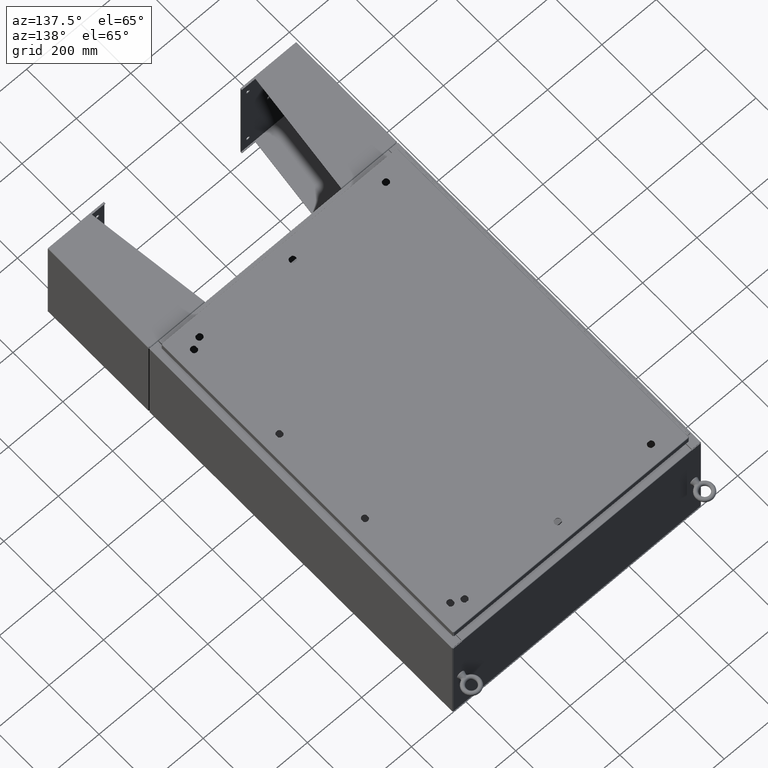
[diagram: clean part render]
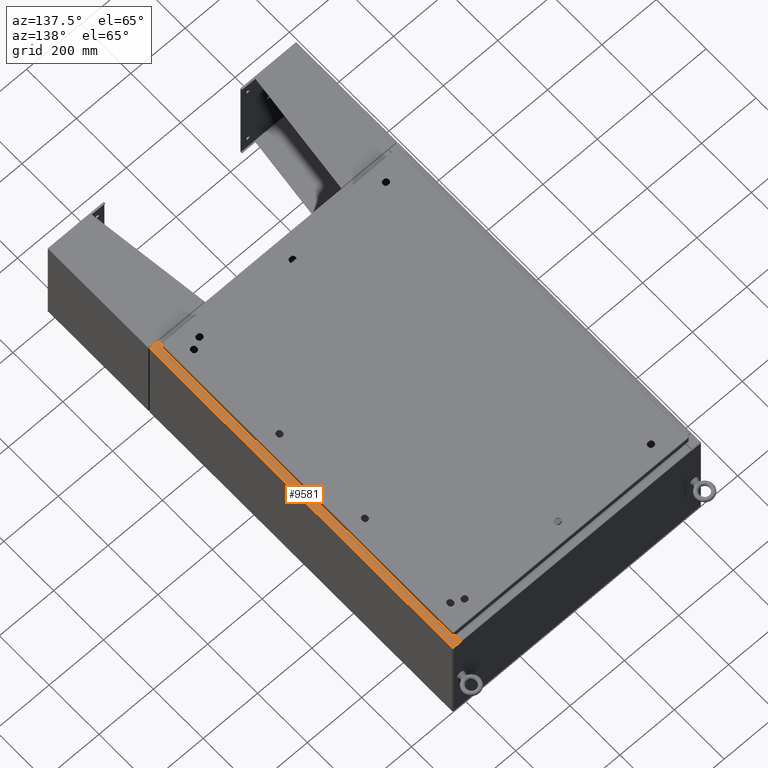
[diagram: same view with one face highlighted and labeled with its STEP entity id]
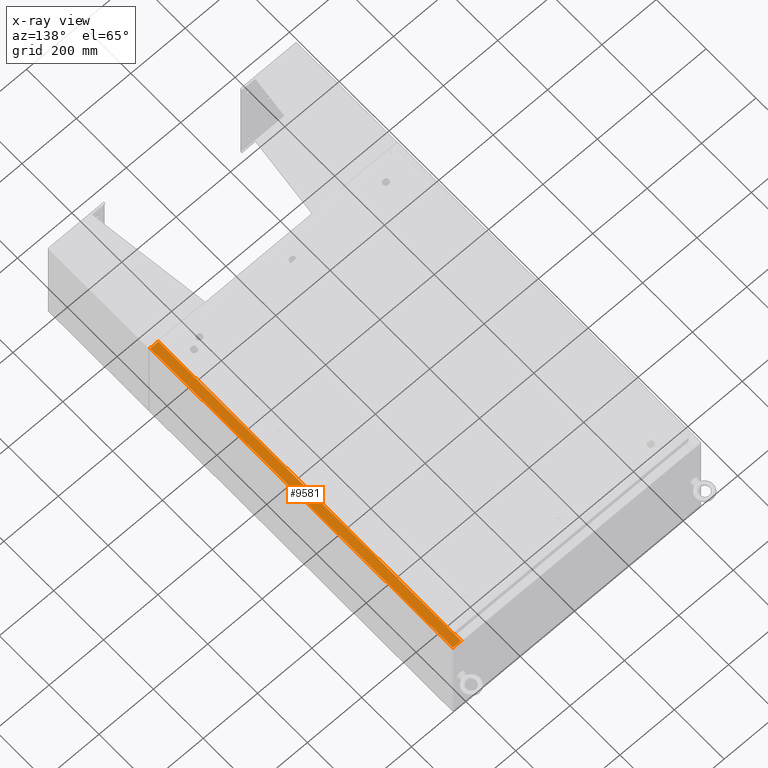
[diagram: x-ray of the same camera — body ghosted, the highlighted face saturated]
A machine part, auxiliary view. The second image highlights one B-rep face of the part: STEP entity #9581.
The next image is the same camera in x-ray: the body ghosted, the highlighted face saturated — about 0% of this face is hidden behind the body in this view.
In plain terms, the highlighted planar face has unit normal (-0, 0, -1).
Its self-contained STEP definition (entity closure, byte-faithful):
#397 = AXIS2_PLACEMENT_3D ( 'NONE', #4994, #33562, #28853 ) ;
#713 = LINE ( 'NONE', #1295, #43347 ) ;
#870 = VECTOR ( 'NONE', #8037, 39.37007874015748100 ) ;
#956 = DIRECTION ( 'NONE',  ( 1.000000000000000000, 8.144358738339254500E-032, -7.132762385546384700E-015 ) ) ;
#1153 = CARTESIAN_POINT ( 'NONE',  ( 16.69970000000005000, 5.279815919650416800E-030, 15.92530000000000500 ) ) ;
#1295 = CARTESIAN_POINT ( 'NONE',  ( 17.91230000000005200, -23.92529999999998900, 15.92530000000000000 ) ) ;
#2976 = CARTESIAN_POINT ( 'NONE',  ( 16.71270000000005100, -22.59374999999998900, 15.92530000000000900 ) ) ;
#3031 = CARTESIAN_POINT ( 'NONE',  ( 16.69970000000005000, -22.63109999999998600, 15.92530000000000500 ) ) ;
#3203 = VECTOR ( 'NONE', #25066, 39.37007874015748100 ) ;
#3314 = DIRECTION ( 'NONE',  ( -0.0000000000000000000, 1.000000000000000000, -0.0000000000000000000 ) ) ;
#3871 = CARTESIAN_POINT ( 'NONE',  ( 16.75005000000005100, 22.63109999999996800, 15.92530000000000900 ) ) ;
#3887 = VECTOR ( 'NONE', #31752, 39.37007874015748100 ) ;
#4994 = CARTESIAN_POINT ( 'NONE',  ( 16.75005000000005100, 22.61242499999997000, 15.92530000000000900 ) ) ;
#5174 = VERTEX_POINT ( 'NONE', #5413 ) ;
#5412 = CARTESIAN_POINT ( 'NONE',  ( 16.69970000000005000, -23.92529999999998900, 15.92530000000000500 ) ) ;
#5413 = CARTESIAN_POINT ( 'NONE',  ( 16.75005000000005100, -22.63109999999998600, 15.92530000000000500 ) ) ;
#5904 = CARTESIAN_POINT ( 'NONE',  ( 16.75005000000005100, 22.63109999999996800, 15.92530000000000500 ) ) ;
#6113 = VERTEX_POINT ( 'NONE', #22334 ) ;
#6211 = EDGE_CURVE ( 'NONE', #29869, #34353, #46528, .T. ) ;
#6249 = CARTESIAN_POINT ( 'NONE',  ( 17.91230000000005200, -23.92529999999998900, 15.92530000000000000 ) ) ;
#6445 = CARTESIAN_POINT ( 'NONE',  ( 16.71270000000005100, 22.59374999999997200, 15.92530000000000900 ) ) ;
#7042 = PLANE ( 'NONE',  #51831 ) ;
#7665 = VERTEX_POINT ( 'NONE', #6445 ) ;
#7897 = CARTESIAN_POINT ( 'NONE',  ( 16.69970000000005000, 22.63109999999996800, 15.92530000000000500 ) ) ;
#8037 = DIRECTION ( 'NONE',  ( -1.000000000000000000, 4.379057701015053300E-047, 7.132762385546384700E-015 ) ) ;
#8808 = EDGE_CURVE ( 'NONE', #21912, #18779, #35479, .T. ) ;
#9128 = ORIENTED_EDGE ( 'NONE', *, *, #11168, .F. ) ;
#9581 = ADVANCED_FACE ( 'NONE', ( #28404 ), #7042, .F. ) ;
#11168 = EDGE_CURVE ( 'NONE', #17817, #7665, #27258, .T. ) ;
#11752 = LINE ( 'NONE', #50808, #870 ) ;
#12788 = CARTESIAN_POINT ( 'NONE',  ( 17.91230000000005200, 23.92529999999998600, 15.92530000000000000 ) ) ;
#12918 = LINE ( 'NONE', #3031, #32290 ) ;
#13346 = ORIENTED_EDGE ( 'NONE', *, *, #22986, .F. ) ;
#16497 = EDGE_CURVE ( 'NONE', #7665, #47665, #23753, .T. ) ;
#16861 = CARTESIAN_POINT ( 'NONE',  ( 16.75005000000005100, -22.61242499999998800, 15.92530000000000900 ) ) ;
#17139 = VECTOR ( 'NONE', #29559, 39.37007874015748100 ) ;
#17258 = CARTESIAN_POINT ( 'NONE',  ( 16.71270000000005100, -22.59374999999998900, 15.92530000000000900 ) ) ;
#17817 = VERTEX_POINT ( 'NONE', #17258 ) ;
#18049 = ORIENTED_EDGE ( 'NONE', *, *, #39118, .F. ) ;
#18640 = ORIENTED_EDGE ( 'NONE', *, *, #26454, .T. ) ;
#18779 = VERTEX_POINT ( 'NONE', #5412 ) ;
#19984 = ORIENTED_EDGE ( 'NONE', *, *, #8808, .T. ) ;
#20953 = DIRECTION ( 'NONE',  ( 1.000000000000000000, 0.0000000000000000000, 0.0000000000000000000 ) ) ;
#21912 = VERTEX_POINT ( 'NONE', #49861 ) ;
#22334 = CARTESIAN_POINT ( 'NONE',  ( 16.69970000000005000, 23.92529999999998200, 15.92530000000000500 ) ) ;
#22512 = DIRECTION ( 'NONE',  ( -7.132762385546384700E-015, 0.0000000000000000000, -1.000000000000000000 ) ) ;
#22874 = DIRECTION ( 'NONE',  ( -1.000000000000000000, 0.0000000000000000000, 7.132762385546384700E-015 ) ) ;
#22986 = EDGE_CURVE ( 'NONE', #47665, #29869, #46900, .T. ) ;
#23193 = VECTOR ( 'NONE', #25705, 39.37007874015748100 ) ;
#23423 = CARTESIAN_POINT ( 'NONE',  ( 16.69970000000005000, 5.279815919650416800E-030, 15.92530000000000500 ) ) ;
#23448 = ORIENTED_EDGE ( 'NONE', *, *, #27862, .F. ) ;
#23753 = LINE ( 'NONE', #35515, #3203 ) ;
#25066 = DIRECTION ( 'NONE',  ( 1.000000000000000000, 0.0000000000000000000, 0.0000000000000000000 ) ) ;
#25497 = CARTESIAN_POINT ( 'NONE',  ( 1.138521944745543500E-013, -23.92529999999998900, 15.92530000000012600 ) ) ;
#25705 = DIRECTION ( 'NONE',  ( 3.161623214578966600E-031, -1.000000000000000000, -2.255110714221909800E-045 ) ) ;
#26454 = EDGE_CURVE ( 'NONE', #35653, #6113, #11752, .T. ) ;
#27019 = CARTESIAN_POINT ( 'NONE',  ( 1.138521944745543500E-013, 0.0000000000000000000, 15.92530000000012600 ) ) ;
#27258 = LINE ( 'NONE', #2976, #48326 ) ;
#27592 = LINE ( 'NONE', #25497, #38648 ) ;
#27862 = EDGE_CURVE ( 'NONE', #35653, #33062, #713, .T. ) ;
#28101 = LINE ( 'NONE', #37862, #17139 ) ;
#28404 = FACE_OUTER_BOUND ( 'NONE', #51674, .T. ) ;
#28853 = DIRECTION ( 'NONE',  ( 1.000000000000000000, 0.0000000000000000000, 0.0000000000000000000 ) ) ;
#29559 = DIRECTION ( 'NONE',  ( -1.000000000000000000, 0.0000000000000000000, 0.0000000000000000000 ) ) ;
#29869 = VERTEX_POINT ( 'NONE', #5904 ) ;
#30659 = CIRCLE ( 'NONE', #31424, 0.01867499999999949400 ) ;
#31008 = CARTESIAN_POINT ( 'NONE',  ( 16.75005000000005100, 22.59374999999997200, 15.92530000000000500 ) ) ;
#31424 = AXIS2_PLACEMENT_3D ( 'NONE', #16861, #45752, #20953 ) ;
#31660 = DIRECTION ( 'NONE',  ( 1.000000000000000000, 0.0000000000000000000, 4.340572780400098900E-014 ) ) ;
#31752 = DIRECTION ( 'NONE',  ( 3.161623214578966600E-031, -1.000000000000000000, -2.255110714221909800E-045 ) ) ;
#32290 = VECTOR ( 'NONE', #31660, 39.37007874015748100 ) ;
#33062 = VERTEX_POINT ( 'NONE', #6249 ) ;
#33163 = EDGE_CURVE ( 'NONE', #21912, #5174, #12918, .T. ) ;
#33562 = DIRECTION ( 'NONE',  ( 7.132762385546384700E-015, 0.0000000000000000000, 1.000000000000000000 ) ) ;
#34186 = LINE ( 'NONE', #1153, #23193 ) ;
#34353 = VERTEX_POINT ( 'NONE', #7897 ) ;
#35171 = VERTEX_POINT ( 'NONE', #37777 ) ;
#35479 = LINE ( 'NONE', #23423, #3887 ) ;
#35515 = CARTESIAN_POINT ( 'NONE',  ( 16.71270000000005100, 22.59374999999997200, 15.92530000000000900 ) ) ;
#35653 = VERTEX_POINT ( 'NONE', #12788 ) ;
#37083 = DIRECTION ( 'NONE',  ( -0.0000000000000000000, -1.000000000000000000, -0.0000000000000000000 ) ) ;
#37297 = EDGE_CURVE ( 'NONE', #18779, #33062, #27592, .T. ) ;
#37777 = CARTESIAN_POINT ( 'NONE',  ( 16.75005000000005100, -22.59374999999998900, 15.92530000000000500 ) ) ;
#37862 = CARTESIAN_POINT ( 'NONE',  ( 16.75005000000005100, -22.59374999999998900, 15.92530000000000900 ) ) ;
#37863 = ORIENTED_EDGE ( 'NONE', *, *, #37297, .T. ) ;
#38648 = VECTOR ( 'NONE', #956, 39.37007874015748100 ) ;
#39118 = EDGE_CURVE ( 'NONE', #5174, #35171, #30659, .T. ) ;
#40734 = VECTOR ( 'NONE', #51245, 39.37007874015748100 ) ;
#43347 = VECTOR ( 'NONE', #37083, 39.37007874015748100 ) ;
#45466 = ORIENTED_EDGE ( 'NONE', *, *, #50566, .F. ) ;
#45752 = DIRECTION ( 'NONE',  ( 7.132762385546384700E-015, 0.0000000000000000000, 1.000000000000000000 ) ) ;
#46528 = LINE ( 'NONE', #3871, #40734 ) ;
#46900 = CIRCLE ( 'NONE', #397, 0.01867499999999949400 ) ;
#47516 = EDGE_CURVE ( 'NONE', #6113, #34353, #34186, .T. ) ;
#47665 = VERTEX_POINT ( 'NONE', #31008 ) ;
#48326 = VECTOR ( 'NONE', #3314, 39.37007874015748100 ) ;
#49801 = ORIENTED_EDGE ( 'NONE', *, *, #47516, .T. ) ;
#49861 = CARTESIAN_POINT ( 'NONE',  ( 16.69970000000005000, -22.63109999999998600, 15.92530000000000500 ) ) ;
#50566 = EDGE_CURVE ( 'NONE', #35171, #17817, #28101, .T. ) ;
#50808 = CARTESIAN_POINT ( 'NONE',  ( 1.138521944745543500E-013, 23.92529999999998600, 15.92530000000012600 ) ) ;
#50867 = ORIENTED_EDGE ( 'NONE', *, *, #6211, .F. ) ;
#51227 = ORIENTED_EDGE ( 'NONE', *, *, #33163, .F. ) ;
#51245 = DIRECTION ( 'NONE',  ( -1.000000000000000000, 0.0000000000000000000, -4.340572780400098900E-014 ) ) ;
#51674 = EDGE_LOOP ( 'NONE', ( #51227, #19984, #37863, #23448, #18640, #49801, #50867, #13346, #53060, #9128, #45466, #18049 ) ) ;
#51831 = AXIS2_PLACEMENT_3D ( 'NONE', #27019, #22512, #22874 ) ;
#53060 = ORIENTED_EDGE ( 'NONE', *, *, #16497, .F. ) ;